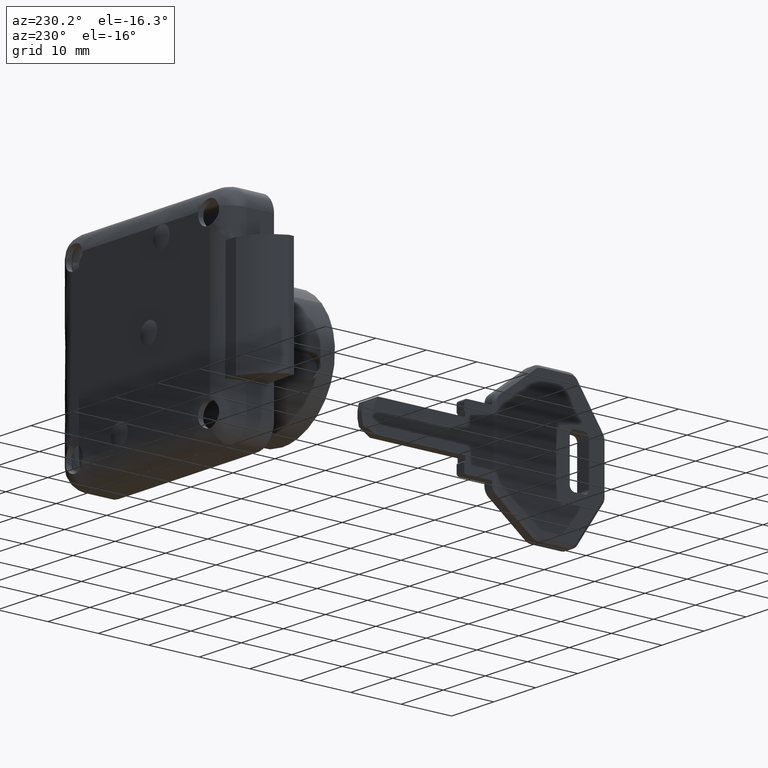
[diagram: clean part render]
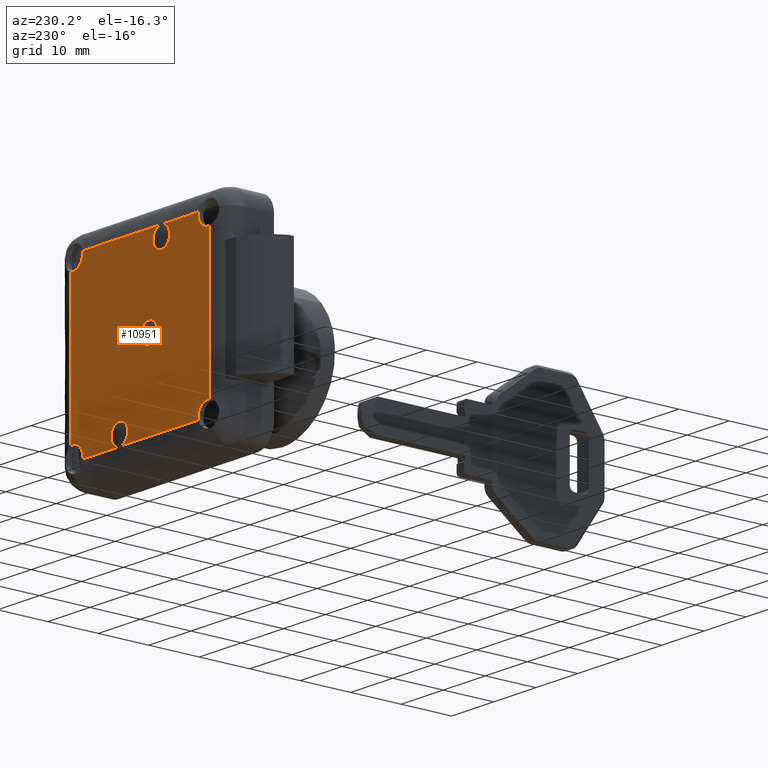
[diagram: same view with one face highlighted and labeled with its STEP entity id]
A machine part, auxiliary view. The second image highlights one B-rep face of the part: STEP entity #10951.
In plain terms, the highlighted face is a freeform B-spline surface patch.
Its self-contained STEP definition (entity closure, byte-faithful):
#8919=CARTESIAN_POINT('',(-15.829278364541469,2.220560E-013,13.756486210587470));
#8920=VERTEX_POINT('',#8919);
#8926=CARTESIAN_POINT('',(-16.500000000083300,2.220446E-013,13.806258903149200));
#8927=VERTEX_POINT('',#8926);
#8928=CARTESIAN_POINT('',(-16.500000000083311,2.220446E-013,13.806258903149160));
#8929=CARTESIAN_POINT('',(-16.168400924936364,2.220446E-013,13.730680459621455));
#8930=CARTESIAN_POINT('',(-15.829278364541468,2.220560E-013,13.756486210587472));
#8938=(BOUNDED_CURVE()B_SPLINE_CURVE(2,(#8928,#8929,#8930),.UNSPECIFIED.,.F.,.U.)B_SPLINE_CURVE_WITH_KNOTS((3,3),(0.0,0.150424486945839),.UNSPECIFIED.)CURVE()GEOMETRIC_REPRESENTATION_ITEM()RATIONAL_B_SPLINE_CURVE((1.0,0.962483384821580,0.947540440003793))REPRESENTATION_ITEM(''));
#8939=EDGE_CURVE('',#8927,#8920,#8938,.T.);
#9003=CARTESIAN_POINT('',(-13.806258903103600,2.220446E-013,16.499999999766700));
#9004=VERTEX_POINT('',#9003);
#9043=CARTESIAN_POINT('',(-14.446638894814210,2.220585E-013,14.372250241294150));
#9044=VERTEX_POINT('',#9043);
#9045=CARTESIAN_POINT('',(-14.446638894814210,2.220585E-013,14.372250241294157));
#9046=CARTESIAN_POINT('',(-14.427609447478073,2.220446E-013,14.390410037163166));
#9047=CARTESIAN_POINT('',(-14.409009742437190,2.220446E-013,14.409009742201549));
#9048=CARTESIAN_POINT('',(-13.530018655005708,2.220446E-013,15.288000829514898));
#9049=CARTESIAN_POINT('',(-13.806258903103600,2.220446E-013,16.499999999766700));
#9057=(BOUNDED_CURVE()B_SPLINE_CURVE(2,(#9045,#9046,#9047,#9048,#9049),.UNSPECIFIED.,.F.,.U.)B_SPLINE_CURVE_WITH_KNOTS((3,2,3),(0.487948846824202,0.500000000000000,1.0),.UNSPECIFIED.)CURVE()GEOMETRIC_REPRESENTATION_ITEM()RATIONAL_B_SPLINE_CURVE((0.994133649552788,0.996994382461710,1.0,0.875297513256841,1.0))REPRESENTATION_ITEM(''));
#9058=EDGE_CURVE('',#9044,#9004,#9057,.T.);
#9214=CARTESIAN_POINT('',(-15.829278364541469,2.220560E-013,13.756486210587473));
#9215=CARTESIAN_POINT('',(-15.027997160752429,2.220446E-013,13.817460222975940));
#9216=CARTESIAN_POINT('',(-14.446638894814210,2.220585E-013,14.372250241294157));
#9224=(BOUNDED_CURVE()B_SPLINE_CURVE(2,(#9214,#9215,#9216),.UNSPECIFIED.,.F.,.U.)B_SPLINE_CURVE_WITH_KNOTS((3,3),(0.150424486945839,0.487948846824202),.UNSPECIFIED.)CURVE()GEOMETRIC_REPRESENTATION_ITEM()RATIONAL_B_SPLINE_CURVE((0.947540440003793,0.914011272068940,0.994133649552788))REPRESENTATION_ITEM(''));
#9225=EDGE_CURVE('',#8920,#9044,#9224,.T.);
#9274=CARTESIAN_POINT('',(-13.756486210599260,2.220073E-013,-15.829278364694130));
#9275=VERTEX_POINT('',#9274);
#9281=CARTESIAN_POINT('',(-13.806258903199980,2.220446E-013,-16.500000000233101));
#9282=VERTEX_POINT('',#9281);
#9283=CARTESIAN_POINT('',(-13.806258903199980,2.220446E-013,-16.500000000233101));
#9284=CARTESIAN_POINT('',(-13.730680459652966,2.220446E-013,-16.168400925090555));
#9285=CARTESIAN_POINT('',(-13.756486210599258,2.220073E-013,-15.829278364694130));
#9293=(BOUNDED_CURVE()B_SPLINE_CURVE(2,(#9283,#9284,#9285),.UNSPECIFIED.,.F.,.U.)B_SPLINE_CURVE_WITH_KNOTS((3,3),(0.0,0.150424486931296),.UNSPECIFIED.)CURVE()GEOMETRIC_REPRESENTATION_ITEM()RATIONAL_B_SPLINE_CURVE((1.0,0.962483384817753,0.947540439996260))REPRESENTATION_ITEM(''));
#9294=EDGE_CURVE('',#9282,#9275,#9293,.T.);
#9358=CARTESIAN_POINT('',(-16.500000000109999,2.220446E-013,-13.806258903198779));
#9359=VERTEX_POINT('',#9358);
#9391=CARTESIAN_POINT('',(-14.372250241225281,2.220099E-013,-14.446638894930929));
#9392=VERTEX_POINT('',#9391);
#9393=CARTESIAN_POINT('',(-14.372250241225284,2.220099E-013,-14.446638894930926));
#9394=CARTESIAN_POINT('',(-14.390410037172778,2.220446E-013,-14.427609447510322));
#9395=CARTESIAN_POINT('',(-14.409009742293510,2.220446E-013,-14.409009742388720));
#9396=CARTESIAN_POINT('',(-15.288000829752013,2.220446E-013,-13.530018654889609));
#9397=CARTESIAN_POINT('',(-16.500000000110010,2.220446E-013,-13.806258903198740));
#9405=(BOUNDED_CURVE()B_SPLINE_CURVE(2,(#9393,#9394,#9395,#9396,#9397),.UNSPECIFIED.,.F.,.U.)B_SPLINE_CURVE_WITH_KNOTS((3,2,3),(0.487948846772658,0.500000000000000,1.0),.UNSPECIFIED.)CURVE()GEOMETRIC_REPRESENTATION_ITEM()RATIONAL_B_SPLINE_CURVE((0.994133649527152,0.996994382448258,1.0,0.875297513232065,1.0))REPRESENTATION_ITEM(''));
#9406=EDGE_CURVE('',#9392,#9359,#9405,.T.);
#9560=CARTESIAN_POINT('',(-13.756486210599265,2.220073E-013,-15.829278364694126));
#9561=CARTESIAN_POINT('',(-13.817460222941005,2.220446E-013,-15.027997160901522));
#9562=CARTESIAN_POINT('',(-14.372250241225277,2.220099E-013,-14.446638894930928));
#9570=(BOUNDED_CURVE()B_SPLINE_CURVE(2,(#9560,#9561,#9562),.UNSPECIFIED.,.F.,.U.)B_SPLINE_CURVE_WITH_KNOTS((3,3),(0.150424486931296,0.487948846772658),.UNSPECIFIED.)CURVE()GEOMETRIC_REPRESENTATION_ITEM()RATIONAL_B_SPLINE_CURVE((0.947540439996260,0.914011272053524,0.994133649527152))REPRESENTATION_ITEM(''));
#9571=EDGE_CURVE('',#9275,#9392,#9570,.T.);
#9620=CARTESIAN_POINT('',(15.829278364343731,2.220073E-013,-13.756486210575311));
#9621=VERTEX_POINT('',#9620);
#9627=CARTESIAN_POINT('',(16.499999999889951,2.220446E-013,-13.806258903077900));
#9628=VERTEX_POINT('',#9627);
#9629=CARTESIAN_POINT('',(16.499999999889958,2.220446E-013,-13.806258903077889));
#9630=CARTESIAN_POINT('',(16.168400924736350,2.220446E-013,-13.730680459579409));
#9631=CARTESIAN_POINT('',(15.829278364343725,2.220073E-013,-13.756486210575309));
#9639=(BOUNDED_CURVE()B_SPLINE_CURVE(2,(#9629,#9630,#9631),.UNSPECIFIED.,.F.,.U.)B_SPLINE_CURVE_WITH_KNOTS((3,3),(0.0,0.150424486936122),.UNSPECIFIED.)CURVE()GEOMETRIC_REPRESENTATION_ITEM()RATIONAL_B_SPLINE_CURVE((1.0,0.962483384819025,0.947540439998763))REPRESENTATION_ITEM(''));
#9640=EDGE_CURVE('',#9628,#9621,#9639,.T.);
#9704=CARTESIAN_POINT('',(13.806258903216261,2.220446E-013,-16.500000000233101));
#9705=VERTEX_POINT('',#9704);
#9737=CARTESIAN_POINT('',(14.446638894670739,2.220064E-013,-14.372250241403860));
#9738=VERTEX_POINT('',#9737);
#9739=CARTESIAN_POINT('',(14.446638894670738,2.220064E-013,-14.372250241403863));
#9740=CARTESIAN_POINT('',(14.427609447280499,2.220446E-013,-14.390410037327717));
#9741=CARTESIAN_POINT('',(14.409009742188070,2.220446E-013,-14.409009742423470));
#9742=CARTESIAN_POINT('',(13.530018654823159,2.220446E-013,-15.288000829945505));
#9743=CARTESIAN_POINT('',(13.806258903216269,2.220446E-013,-16.500000000233101));
#9751=(BOUNDED_CURVE()B_SPLINE_CURVE(2,(#9739,#9740,#9741,#9742,#9743),.UNSPECIFIED.,.F.,.U.)B_SPLINE_CURVE_WITH_KNOTS((3,2,3),(0.487948846789776,0.500000000000000,1.0),.UNSPECIFIED.)CURVE()GEOMETRIC_REPRESENTATION_ITEM()RATIONAL_B_SPLINE_CURVE((0.994133649535665,0.996994382452726,1.0,0.875297513240293,1.0))REPRESENTATION_ITEM(''));
#9752=EDGE_CURVE('',#9738,#9705,#9751,.T.);
#9907=CARTESIAN_POINT('',(15.829278364343729,2.220073E-013,-13.756486210575311));
#9908=CARTESIAN_POINT('',(15.027997160560060,2.220446E-013,-13.817460223034402));
#9909=CARTESIAN_POINT('',(14.446638894670739,2.220064E-013,-14.372250241403865));
#9917=(BOUNDED_CURVE()B_SPLINE_CURVE(2,(#9907,#9908,#9909),.UNSPECIFIED.,.F.,.U.)B_SPLINE_CURVE_WITH_KNOTS((3,3),(0.150424486936122,0.487948846789775),.UNSPECIFIED.)CURVE()GEOMETRIC_REPRESENTATION_ITEM()RATIONAL_B_SPLINE_CURVE((0.947540439998763,0.914011272058643,0.994133649535665))REPRESENTATION_ITEM(''));
#9918=EDGE_CURVE('',#9621,#9738,#9917,.T.);
#9967=CARTESIAN_POINT('',(13.756486210637719,1.074572E-013,15.829278364216560));
#9968=VERTEX_POINT('',#9967);
#9974=CARTESIAN_POINT('',(13.806258903087620,0.0,16.499999999766700));
#9975=VERTEX_POINT('',#9974);
#9976=CARTESIAN_POINT('',(13.806258903087620,0.0,16.499999999766700));
#9977=CARTESIAN_POINT('',(13.730680459615190,6.075069E-014,16.168400924607162));
#9978=CARTESIAN_POINT('',(13.756486210637719,1.074572E-013,15.829278364216560));
#9986=(BOUNDED_CURVE()B_SPLINE_CURVE(2,(#9976,#9977,#9978),.UNSPECIFIED.,.F.,.U.)B_SPLINE_CURVE_WITH_KNOTS((3,3),(0.0,0.150424486953514),.UNSPECIFIED.)CURVE()GEOMETRIC_REPRESENTATION_ITEM()RATIONAL_B_SPLINE_CURVE((1.0,0.962483384823598,0.947540440007767))REPRESENTATION_ITEM(''));
#9987=EDGE_CURVE('',#9975,#9968,#9986,.T.);
#10051=CARTESIAN_POINT('',(16.499999999916898,2.220446E-013,13.806258903182020));
#10052=VERTEX_POINT('',#10051);
#10084=CARTESIAN_POINT('',(14.372250241574839,2.219173E-013,14.446638894591930));
#10085=VERTEX_POINT('',#10084);
#10086=CARTESIAN_POINT('',(14.372250241574838,2.219173E-013,14.446638894591928));
#10087=CARTESIAN_POINT('',(14.390410037405028,2.220446E-013,14.427609447302828));
#10088=CARTESIAN_POINT('',(14.409009742402500,2.220446E-013,14.409009742307040));
#10089=CARTESIAN_POINT('',(15.288000829758690,2.220446E-013,13.530018655030657));
#10090=CARTESIAN_POINT('',(16.499999999916898,2.220446E-013,13.806258903182030));
#10098=(BOUNDED_CURVE()B_SPLINE_CURVE(2,(#10086,#10087,#10088,#10089,#10090),.UNSPECIFIED.,.F.,.U.)B_SPLINE_CURVE_WITH_KNOTS((3,2,3),(0.487948846851393,0.500000000000000,1.0),.UNSPECIFIED.)CURVE()GEOMETRIC_REPRESENTATION_ITEM()RATIONAL_B_SPLINE_CURVE((0.994133649566312,0.996994382468807,1.0,0.875297513269912,1.0))REPRESENTATION_ITEM(''));
#10099=EDGE_CURVE('',#10085,#10052,#10098,.T.);
#10249=CARTESIAN_POINT('',(13.756486210637719,1.074572E-013,15.829278364216560));
#10250=CARTESIAN_POINT('',(13.817460223159733,2.179509E-013,15.027997160437678));
#10251=CARTESIAN_POINT('',(14.372250241574836,2.219173E-013,14.446638894591924));
#10259=(BOUNDED_CURVE()B_SPLINE_CURVE(2,(#10249,#10250,#10251),.UNSPECIFIED.,.F.,.U.)B_SPLINE_CURVE_WITH_KNOTS((3,3),(0.150424486953514,0.487948846851393),.UNSPECIFIED.)CURVE()GEOMETRIC_REPRESENTATION_ITEM()RATIONAL_B_SPLINE_CURVE((0.947540440007767,0.914011272077074,0.994133649566313))REPRESENTATION_ITEM(''));
#10260=EDGE_CURVE('',#9968,#10085,#10259,.T.);
#10307=CARTESIAN_POINT('',(-3.013980947258452,2.204923E-013,14.736068469757830));
#10308=VERTEX_POINT('',#10307);
#10314=CARTESIAN_POINT('',(-4.999999999932130,2.220446E-013,12.499999999993721));
#10315=VERTEX_POINT('',#10314);
#10316=CARTESIAN_POINT('',(-3.013980947258452,2.204923E-013,14.736068469757830));
#10317=CARTESIAN_POINT('',(-2.999999999932130,2.220446E-013,14.618448239753706));
#10318=CARTESIAN_POINT('',(-2.999999999932130,2.220446E-013,14.499999999993721));
#10319=CARTESIAN_POINT('',(-2.999999999932129,2.220446E-013,12.499999999993719));
#10320=CARTESIAN_POINT('',(-4.999999999932130,2.220446E-013,12.499999999993721));
#10328=(BOUNDED_CURVE()B_SPLINE_CURVE(2,(#10316,#10317,#10318,#10319,#10320),.UNSPECIFIED.,.F.,.U.)B_SPLINE_CURVE_WITH_KNOTS((3,2,3),(0.229562473438821,0.250000000000000,0.500000000000000),.UNSPECIFIED.)CURVE()GEOMETRIC_REPRESENTATION_ITEM()RATIONAL_B_SPLINE_CURVE((0.956026754037309,0.976055948243643,1.0,0.707106781186548,1.0))REPRESENTATION_ITEM(''));
#10329=EDGE_CURVE('',#10308,#10315,#10328,.T.);
#10331=CARTESIAN_POINT('',(-6.996269596750492,2.220273E-013,14.377902920509200));
#10332=VERTEX_POINT('',#10331);
#10333=CARTESIAN_POINT('',(-4.999999999932130,2.220446E-013,12.499999999993721));
#10334=CARTESIAN_POINT('',(-6.881412132960191,2.220446E-013,12.499999999993719));
#10335=CARTESIAN_POINT('',(-6.996269596750492,2.220273E-013,14.377902920509198));
#10343=(BOUNDED_CURVE()B_SPLINE_CURVE(2,(#10333,#10334,#10335),.UNSPECIFIED.,.F.,.U.)B_SPLINE_CURVE_WITH_KNOTS((3,3),(0.500000000000000,0.739332962170262),.UNSPECIFIED.)CURVE()GEOMETRIC_REPRESENTATION_ITEM()RATIONAL_B_SPLINE_CURVE((1.0,0.719603993367175,0.976072041519522))REPRESENTATION_ITEM(''));
#10344=EDGE_CURVE('',#10315,#10332,#10343,.T.);
#10418=CARTESIAN_POINT('',(-4.999999999932130,0.0,16.499999999766700));
#10419=VERTEX_POINT('',#10418);
#10420=CARTESIAN_POINT('',(-6.996269596750492,2.220273E-013,14.377902920509202));
#10421=CARTESIAN_POINT('',(-6.999999999932130,2.220446E-013,14.438894472980573));
#10422=CARTESIAN_POINT('',(-6.999999999932130,2.220446E-013,14.499999999993721));
#10423=CARTESIAN_POINT('',(-6.999999999932130,2.220446E-013,16.499999999993729));
#10424=CARTESIAN_POINT('',(-4.999999999932130,0.0,16.499999999766700));
#10432=(BOUNDED_CURVE()B_SPLINE_CURVE(2,(#10420,#10421,#10422,#10423,#10424),.UNSPECIFIED.,.F.,.U.)B_SPLINE_CURVE_WITH_KNOTS((3,2,3),(0.739332962170261,0.750000000000000,1.0),.UNSPECIFIED.)CURVE()GEOMETRIC_REPRESENTATION_ITEM()RATIONAL_B_SPLINE_CURVE((0.976072041519520,0.987502787819372,1.0,0.707106781186548,1.0))REPRESENTATION_ITEM(''));
#10433=EDGE_CURVE('',#10332,#10419,#10432,.T.);
#10435=CARTESIAN_POINT('',(-4.999999999932130,0.0,16.499999999766700));
#10436=CARTESIAN_POINT('',(-3.223650948842551,1.972144E-013,16.499999999968331));
#10437=CARTESIAN_POINT('',(-3.013980947258451,2.204923E-013,14.736068469757832));
#10445=(BOUNDED_CURVE()B_SPLINE_CURVE(2,(#10435,#10436,#10437),.UNSPECIFIED.,.F.,.U.)B_SPLINE_CURVE_WITH_KNOTS((3,3),(0.0,0.229562473438821),.UNSPECIFIED.)CURVE()GEOMETRIC_REPRESENTATION_ITEM()RATIONAL_B_SPLINE_CURVE((1.0,0.731050832942904,0.956026754037309))REPRESENTATION_ITEM(''));
#10446=EDGE_CURVE('',#10419,#10308,#10445,.T.);
#10487=CARTESIAN_POINT('',(-0.015467572420757,2.220270E-013,-0.248256004733891));
#10488=VERTEX_POINT('',#10487);
#10494=CARTESIAN_POINT('',(-2.0,2.220446E-013,-2.0));
#10495=VERTEX_POINT('',#10494);
#10496=CARTESIAN_POINT('',(-2.0,2.220446E-013,-2.0));
#10497=CARTESIAN_POINT('',(-0.234602800729147,2.220446E-013,-2.0));
#10498=CARTESIAN_POINT('',(-0.015467572420757,2.220270E-013,-0.248256004733891));
#10506=(BOUNDED_CURVE()B_SPLINE_CURVE(2,(#10496,#10497,#10498),.UNSPECIFIED.,.F.,.U.)B_SPLINE_CURVE_WITH_KNOTS((3,3),(0.500000000000000,0.728526070931703),.UNSPECIFIED.)CURVE()GEOMETRIC_REPRESENTATION_ITEM()RATIONAL_B_SPLINE_CURVE((1.0,0.732265054008089,0.954005430085322))REPRESENTATION_ITEM(''));
#10507=EDGE_CURVE('',#10495,#10488,#10506,.T.);
#10509=CARTESIAN_POINT('',(-3.999923846122722,2.220273E-013,0.017453071640753));
#10510=VERTEX_POINT('',#10509);
#10511=CARTESIAN_POINT('',(-3.999923846122722,2.220273E-013,0.017453071640753));
#10512=CARTESIAN_POINT('',(-4.000000000000000,2.220446E-013,0.008726702285445));
#10513=CARTESIAN_POINT('',(-4.0,2.220446E-013,0.0));
#10514=CARTESIAN_POINT('',(-4.000000000000000,2.220446E-013,-2.000000000000000));
#10515=CARTESIAN_POINT('',(-2.0,2.220446E-013,-2.0));
#10523=(BOUNDED_CURVE()B_SPLINE_CURVE(2,(#10511,#10512,#10513,#10514,#10515),.UNSPECIFIED.,.F.,.U.)B_SPLINE_CURVE_WITH_KNOTS((3,2,3),(0.248460105551572,0.250000000000000,0.500000000000000),.UNSPECIFIED.)CURVE()GEOMETRIC_REPRESENTATION_ITEM()RATIONAL_B_SPLINE_CURVE((0.996414027837871,0.998195901433468,1.0,0.707106781186548,1.0))REPRESENTATION_ITEM(''));
#10524=EDGE_CURVE('',#10510,#10495,#10523,.T.);
#10604=CARTESIAN_POINT('',(-2.0,2.220446E-013,2.0));
#10605=VERTEX_POINT('',#10604);
#10606=CARTESIAN_POINT('',(-2.0,2.220446E-013,2.0));
#10607=CARTESIAN_POINT('',(-3.982622419913040,2.220446E-013,2.000000000000000));
#10608=CARTESIAN_POINT('',(-3.999923846122722,2.220273E-013,0.017453071640753));
#10616=(BOUNDED_CURVE()B_SPLINE_CURVE(2,(#10606,#10607,#10608),.UNSPECIFIED.,.F.,.U.)B_SPLINE_CURVE_WITH_KNOTS((3,3),(0.0,0.248460105551572),.UNSPECIFIED.)CURVE()GEOMETRIC_REPRESENTATION_ITEM()RATIONAL_B_SPLINE_CURVE((1.0,0.708910879753080,0.996414027837871))REPRESENTATION_ITEM(''));
#10617=EDGE_CURVE('',#10605,#10510,#10616,.T.);
#10619=CARTESIAN_POINT('',(-0.015467572420757,2.220270E-013,-0.248256004733891));
#10620=CARTESIAN_POINT('',(0.0,2.220446E-013,-0.124609855647943));
#10621=CARTESIAN_POINT('',(0.0,2.220446E-013,0.0));
#10622=CARTESIAN_POINT('',(0.0,2.220446E-013,2.000000000000000));
#10623=CARTESIAN_POINT('',(-2.0,2.220446E-013,2.0));
#10631=(BOUNDED_CURVE()B_SPLINE_CURVE(2,(#10619,#10620,#10621,#10622,#10623),.UNSPECIFIED.,.F.,.U.)B_SPLINE_CURVE_WITH_KNOTS((3,2,3),(0.728526070931702,0.750000000000000,1.0),.UNSPECIFIED.)CURVE()GEOMETRIC_REPRESENTATION_ITEM()RATIONAL_B_SPLINE_CURVE((0.954005430085321,0.974841727178458,1.0,0.707106781186548,1.0))REPRESENTATION_ITEM(''));
#10632=EDGE_CURVE('',#10488,#10605,#10631,.T.);
#10679=CARTESIAN_POINT('',(3.013980947393915,2.204923E-013,-14.736068469814841));
#10680=VERTEX_POINT('',#10679);
#10686=CARTESIAN_POINT('',(5.000000000067760,2.220446E-013,-12.500000000050701));
#10687=VERTEX_POINT('',#10686);
#10688=CARTESIAN_POINT('',(3.013980947393915,2.204923E-013,-14.736068469814834));
#10689=CARTESIAN_POINT('',(3.000000000067760,2.220446E-013,-14.618448239809254));
#10690=CARTESIAN_POINT('',(3.000000000067760,2.220446E-013,-14.500000000050701));
#10691=CARTESIAN_POINT('',(3.000000000067761,2.220446E-013,-12.500000000050699));
#10692=CARTESIAN_POINT('',(5.000000000067760,2.220446E-013,-12.500000000050701));
#10700=(BOUNDED_CURVE()B_SPLINE_CURVE(2,(#10688,#10689,#10690,#10691,#10692),.UNSPECIFIED.,.F.,.U.)B_SPLINE_CURVE_WITH_KNOTS((3,2,3),(0.229562473439061,0.250000000000000,0.500000000000000),.UNSPECIFIED.)CURVE()GEOMETRIC_REPRESENTATION_ITEM()RATIONAL_B_SPLINE_CURVE((0.956026754037779,0.976055948243924,1.0,0.707106781186548,1.0))REPRESENTATION_ITEM(''));
#10701=EDGE_CURVE('',#10680,#10687,#10700,.T.);
#10703=CARTESIAN_POINT('',(6.996269596886123,2.220273E-013,-14.377902920566180));
#10704=VERTEX_POINT('',#10703);
#10705=CARTESIAN_POINT('',(5.000000000067760,2.220446E-013,-12.500000000050701));
#10706=CARTESIAN_POINT('',(6.881412133095822,2.220446E-013,-12.500000000050697));
#10707=CARTESIAN_POINT('',(6.996269596886123,2.220273E-013,-14.377902920566182));
#10715=(BOUNDED_CURVE()B_SPLINE_CURVE(2,(#10705,#10706,#10707),.UNSPECIFIED.,.F.,.U.)B_SPLINE_CURVE_WITH_KNOTS((3,3),(0.500000000000000,0.739332962170262),.UNSPECIFIED.)CURVE()GEOMETRIC_REPRESENTATION_ITEM()RATIONAL_B_SPLINE_CURVE((1.0,0.719603993367175,0.976072041519522))REPRESENTATION_ITEM(''));
#10716=EDGE_CURVE('',#10687,#10704,#10715,.T.);
#10790=CARTESIAN_POINT('',(5.000000000067760,0.0,-16.500000000233101));
#10791=VERTEX_POINT('',#10790);
#10792=CARTESIAN_POINT('',(6.996269596886123,2.220273E-013,-14.377902920566182));
#10793=CARTESIAN_POINT('',(7.000000000067760,2.220446E-013,-14.438894473037550));
#10794=CARTESIAN_POINT('',(7.000000000067760,2.220446E-013,-14.500000000050701));
#10795=CARTESIAN_POINT('',(7.000000000067760,2.220446E-013,-16.500000000050708));
#10796=CARTESIAN_POINT('',(5.000000000067760,0.0,-16.500000000233101));
#10804=(BOUNDED_CURVE()B_SPLINE_CURVE(2,(#10792,#10793,#10794,#10795,#10796),.UNSPECIFIED.,.F.,.U.)B_SPLINE_CURVE_WITH_KNOTS((3,2,3),(0.739332962170261,0.750000000000000,1.0),.UNSPECIFIED.)CURVE()GEOMETRIC_REPRESENTATION_ITEM()RATIONAL_B_SPLINE_CURVE((0.976072041519520,0.987502787819372,1.0,0.707106781186548,1.0))REPRESENTATION_ITEM(''));
#10805=EDGE_CURVE('',#10704,#10791,#10804,.T.);
#10807=CARTESIAN_POINT('',(5.000000000067760,0.0,-16.500000000233101));
#10808=CARTESIAN_POINT('',(3.223650948975642,1.972144E-013,-16.500000000071097));
#10809=CARTESIAN_POINT('',(3.013980947393915,2.204923E-013,-14.736068469814837));
#10817=(BOUNDED_CURVE()B_SPLINE_CURVE(2,(#10807,#10808,#10809),.UNSPECIFIED.,.F.,.U.)B_SPLINE_CURVE_WITH_KNOTS((3,3),(0.0,0.229562473439061),.UNSPECIFIED.)CURVE()GEOMETRIC_REPRESENTATION_ITEM()RATIONAL_B_SPLINE_CURVE((1.0,0.731050832942623,0.956026754037779))REPRESENTATION_ITEM(''));
#10818=EDGE_CURVE('',#10791,#10680,#10817,.T.);
#10888=CARTESIAN_POINT('',(-18.148349936150939,0.0,18.148349935806291));
#10889=CARTESIAN_POINT('',(18.148350821086819,0.0,18.148349935806291));
#10890=CARTESIAN_POINT('',(-18.148349936150939,0.0,-18.148350821401671));
#10891=CARTESIAN_POINT('',(18.148350821086819,0.0,-18.148350821401671));
#10892=B_SPLINE_SURFACE_WITH_KNOTS('',1,1,((#10888,#10890),(#10889,#10891)),.UNSPECIFIED.,.F.,.F.,.U.,(2,2),(2,2),(0.0,36.296700757237758),(0.0,36.296700757207958),.UNSPECIFIED.);
#10893=ORIENTED_EDGE('',*,*,#8939,.T.);
#10894=ORIENTED_EDGE('',*,*,#9225,.T.);
#10895=ORIENTED_EDGE('',*,*,#9058,.T.);
#10896=CARTESIAN_POINT('',(-13.806258903103600,2.220446E-013,16.499999999766700));
#10897=CARTESIAN_POINT('',(-4.999999999932130,0.0,16.499999999766700));
#10898=QUASI_UNIFORM_CURVE('',1,(#10896,#10897),.UNSPECIFIED.,.F.,.U.);
#10899=EDGE_CURVE('',#9004,#10419,#10898,.T.);
#10900=ORIENTED_EDGE('',*,*,#10899,.T.);
#10901=ORIENTED_EDGE('',*,*,#10433,.F.);
#10902=ORIENTED_EDGE('',*,*,#10344,.F.);
#10903=ORIENTED_EDGE('',*,*,#10329,.F.);
#10904=ORIENTED_EDGE('',*,*,#10446,.F.);
#10905=CARTESIAN_POINT('',(-4.999999999932130,0.0,16.499999999766700));
#10906=CARTESIAN_POINT('',(13.806258903087620,0.0,16.499999999766700));
#10907=QUASI_UNIFORM_CURVE('',1,(#10905,#10906),.UNSPECIFIED.,.F.,.U.);
#10908=EDGE_CURVE('',#10419,#9975,#10907,.T.);
#10909=ORIENTED_EDGE('',*,*,#10908,.T.);
#10910=ORIENTED_EDGE('',*,*,#9987,.T.);
#10911=ORIENTED_EDGE('',*,*,#10260,.T.);
#10912=ORIENTED_EDGE('',*,*,#10099,.T.);
#10913=CARTESIAN_POINT('',(16.499999999916898,2.220446E-013,13.806258903182020));
#10914=CARTESIAN_POINT('',(16.499999999889951,2.220446E-013,-13.806258903077900));
#10915=QUASI_UNIFORM_CURVE('',1,(#10913,#10914),.UNSPECIFIED.,.F.,.U.);
#10916=EDGE_CURVE('',#10052,#9628,#10915,.T.);
#10917=ORIENTED_EDGE('',*,*,#10916,.T.);
#10918=ORIENTED_EDGE('',*,*,#9640,.T.);
#10919=ORIENTED_EDGE('',*,*,#9918,.T.);
#10920=ORIENTED_EDGE('',*,*,#9752,.T.);
#10921=CARTESIAN_POINT('',(13.806258903216261,2.220446E-013,-16.500000000233101));
#10922=CARTESIAN_POINT('',(5.000000000067760,0.0,-16.500000000233101));
#10923=QUASI_UNIFORM_CURVE('',1,(#10921,#10922),.UNSPECIFIED.,.F.,.U.);
#10924=EDGE_CURVE('',#9705,#10791,#10923,.T.);
#10925=ORIENTED_EDGE('',*,*,#10924,.T.);
#10926=ORIENTED_EDGE('',*,*,#10805,.F.);
#10927=ORIENTED_EDGE('',*,*,#10716,.F.);
#10928=ORIENTED_EDGE('',*,*,#10701,.F.);
#10929=ORIENTED_EDGE('',*,*,#10818,.F.);
#10930=CARTESIAN_POINT('',(5.000000000067760,0.0,-16.500000000233101));
#10931=CARTESIAN_POINT('',(-13.806258903199980,2.220446E-013,-16.500000000233101));
#10932=QUASI_UNIFORM_CURVE('',1,(#10930,#10931),.UNSPECIFIED.,.F.,.U.);
#10933=EDGE_CURVE('',#10791,#9282,#10932,.T.);
#10934=ORIENTED_EDGE('',*,*,#10933,.T.);
#10935=ORIENTED_EDGE('',*,*,#9294,.T.);
#10936=ORIENTED_EDGE('',*,*,#9571,.T.);
#10937=ORIENTED_EDGE('',*,*,#9406,.T.);
#10938=CARTESIAN_POINT('',(-16.500000000109999,2.220446E-013,-13.806258903198779));
#10939=CARTESIAN_POINT('',(-16.500000000083300,2.220446E-013,13.806258903149200));
#10940=QUASI_UNIFORM_CURVE('',1,(#10938,#10939),.UNSPECIFIED.,.F.,.U.);
#10941=EDGE_CURVE('',#9359,#8927,#10940,.T.);
#10942=ORIENTED_EDGE('',*,*,#10941,.T.);
#10943=EDGE_LOOP('',(#10893,#10894,#10895,#10900,#10901,#10902,#10903,#10904,#10909,#10910,#10911,#10912,#10917,#10918,#10919,#10920,#10925,#10926,#10927,#10928,#10929,#10934,#10935,#10936,#10937,#10942));
#10944=FACE_OUTER_BOUND('',#10943,.T.);
#10945=ORIENTED_EDGE('',*,*,#10617,.T.);
#10946=ORIENTED_EDGE('',*,*,#10524,.T.);
#10947=ORIENTED_EDGE('',*,*,#10507,.T.);
#10948=ORIENTED_EDGE('',*,*,#10632,.T.);
#10949=EDGE_LOOP('',(#10945,#10946,#10947,#10948));
#10950=FACE_BOUND('',#10949,.T.);
#10951=ADVANCED_FACE('',(#10944,#10950),#10892,.T.);